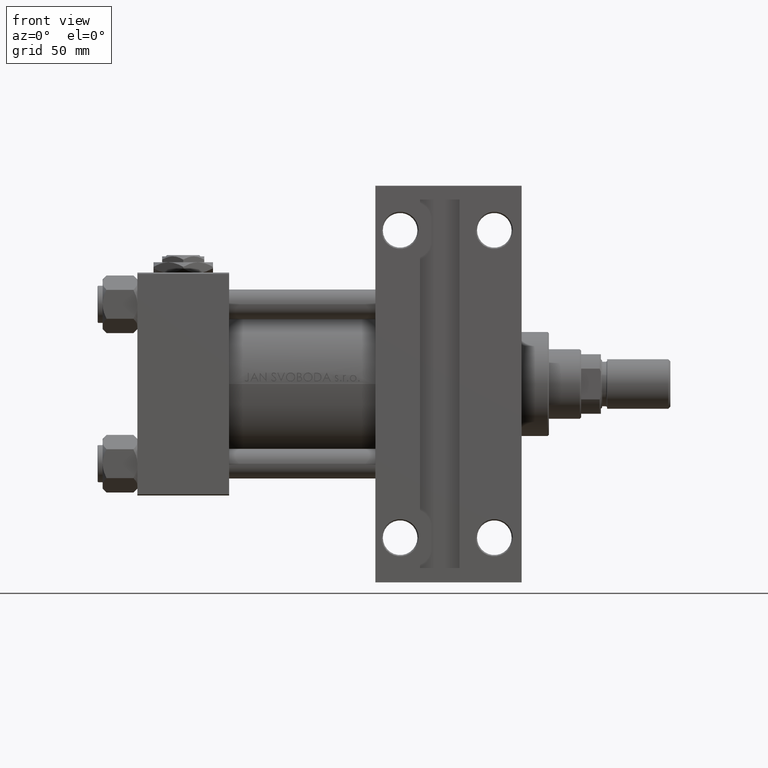
[diagram: clean part render]
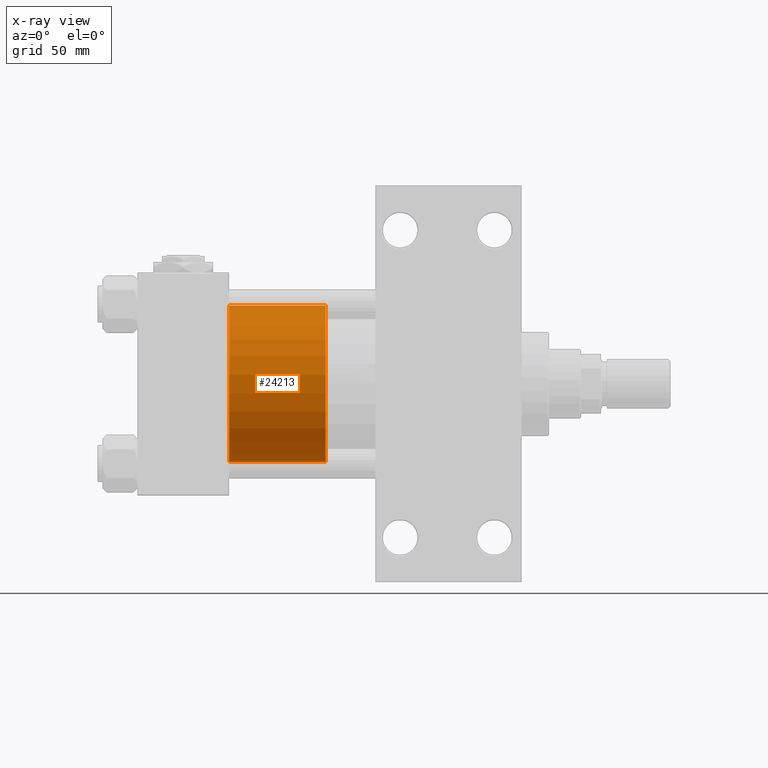
[diagram: x-ray — body ghosted, one internal face saturated and labeled with its STEP entity id]
A machine part, front view, then the same camera in x-ray: the body is ghosted and one INTERNAL B-rep face — a face not visible from any outside direction — is saturated and labeled: STEP entity #24213.
In plain terms, the highlighted cylindrical surface (partial cylindrical patch) has radius 31.5 mm, axis along (-1, 0, 0).
Its self-contained STEP definition (entity closure, byte-faithful):
#2720 = DIRECTION ( 'NONE',  ( 0.000000000000000000, 0.000000000000000000, 1.000000000000000000 ) ) ;
#3237 = DIRECTION ( 'NONE',  ( -0.000000000000000000, -0.000000000000000000, -1.000000000000000000 ) ) ;
#4384 = LINE ( 'NONE', #7686, #20119 ) ;
#6139 = CARTESIAN_POINT ( 'NONE',  ( 31.50000000000000000, 3.857637417314162689E-15, 0.000000000000000000 ) ) ;
#6265 = CARTESIAN_POINT ( 'NONE',  ( 31.50000000000000000, 3.857637417314162689E-15, 39.00000000000000000 ) ) ;
#7253 = EDGE_CURVE ( 'NONE', #25456, #8095, #4384, .T. ) ;
#7594 = AXIS2_PLACEMENT_3D ( 'NONE', #9807, #2720, #14355 ) ;
#7686 = CARTESIAN_POINT ( 'NONE',  ( -31.50000000000000000, 0.000000000000000000, 39.00000000000000000 ) ) ;
#8095 = VERTEX_POINT ( 'NONE', #25920 ) ;
#9807 = CARTESIAN_POINT ( 'NONE',  ( 0.000000000000000000, 0.000000000000000000, 0.000000000000000000 ) ) ;
#11814 = CIRCLE ( 'NONE', #40973, 31.50000000000000000 ) ;
#13147 = DIRECTION ( 'NONE',  ( 0.000000000000000000, 0.000000000000000000, 1.000000000000000000 ) ) ;
#14355 = DIRECTION ( 'NONE',  ( 1.000000000000000000, 0.000000000000000000, 0.000000000000000000 ) ) ;
#17495 = CARTESIAN_POINT ( 'NONE',  ( -31.50000000000000000, 0.000000000000000000, 39.00000000000000000 ) ) ;
#17781 = CARTESIAN_POINT ( 'NONE',  ( 31.50000000000000000, 3.857637417314162689E-15, 39.00000000000000000 ) ) ;
#20119 = VECTOR ( 'NONE', #42688, 1000.000000000000000 ) ;
#21697 = DIRECTION ( 'NONE',  ( -0.000000000000000000, -0.000000000000000000, -1.000000000000000000 ) ) ;
#22196 = DIRECTION ( 'NONE',  ( -1.000000000000000000, 0.000000000000000000, 0.000000000000000000 ) ) ;
#22218 = AXIS2_PLACEMENT_3D ( 'NONE', #49105, #21697, #22196 ) ;
#23622 = ORIENTED_EDGE ( 'NONE', *, *, #31919, .F. ) ;
#24213 = ADVANCED_FACE ( 'NONE', ( #29068 ), #25746, .T. ) ;
#24283 = EDGE_LOOP ( 'NONE', ( #23622, #47103, #34949, #45168 ) ) ;
#25456 = VERTEX_POINT ( 'NONE', #17495 ) ;
#25746 = CYLINDRICAL_SURFACE ( 'NONE', #22218, 31.50000000000000000 ) ;
#25880 = EDGE_CURVE ( 'NONE', #45152, #34366, #37444, .T. ) ;
#25910 = EDGE_CURVE ( 'NONE', #34366, #8095, #26206, .T. ) ;
#25920 = CARTESIAN_POINT ( 'NONE',  ( -31.50000000000000000, 0.000000000000000000, 0.000000000000000000 ) ) ;
#26206 = CIRCLE ( 'NONE', #7594, 31.50000000000000000 ) ;
#27024 = VECTOR ( 'NONE', #3237, 1000.000000000000000 ) ;
#28622 = CARTESIAN_POINT ( 'NONE',  ( 0.000000000000000000, 0.000000000000000000, 39.00000000000000000 ) ) ;
#29068 = FACE_OUTER_BOUND ( 'NONE', #24283, .T. ) ;
#31907 = DIRECTION ( 'NONE',  ( 1.000000000000000000, 0.000000000000000000, 0.000000000000000000 ) ) ;
#31919 = EDGE_CURVE ( 'NONE', #45152, #25456, #11814, .T. ) ;
#34366 = VERTEX_POINT ( 'NONE', #6139 ) ;
#34949 = ORIENTED_EDGE ( 'NONE', *, *, #25910, .T. ) ;
#37444 = LINE ( 'NONE', #6265, #27024 ) ;
#40973 = AXIS2_PLACEMENT_3D ( 'NONE', #28622, #13147, #31907 ) ;
#42688 = DIRECTION ( 'NONE',  ( -0.000000000000000000, -0.000000000000000000, -1.000000000000000000 ) ) ;
#45152 = VERTEX_POINT ( 'NONE', #17781 ) ;
#45168 = ORIENTED_EDGE ( 'NONE', *, *, #7253, .F. ) ;
#47103 = ORIENTED_EDGE ( 'NONE', *, *, #25880, .T. ) ;
#49105 = CARTESIAN_POINT ( 'NONE',  ( 0.000000000000000000, 0.000000000000000000, 39.00000000000000000 ) ) ;